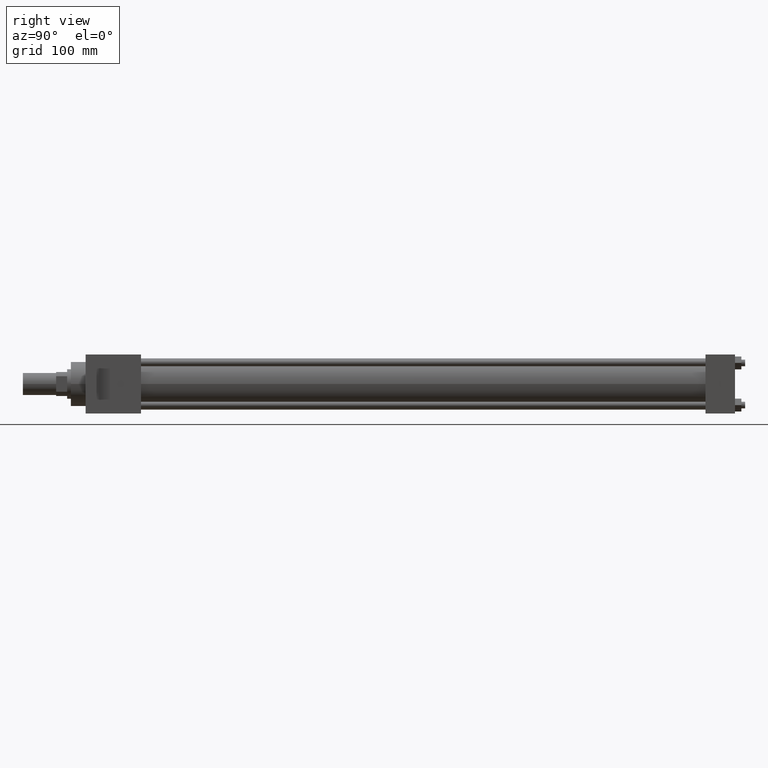
[diagram: clean part render]
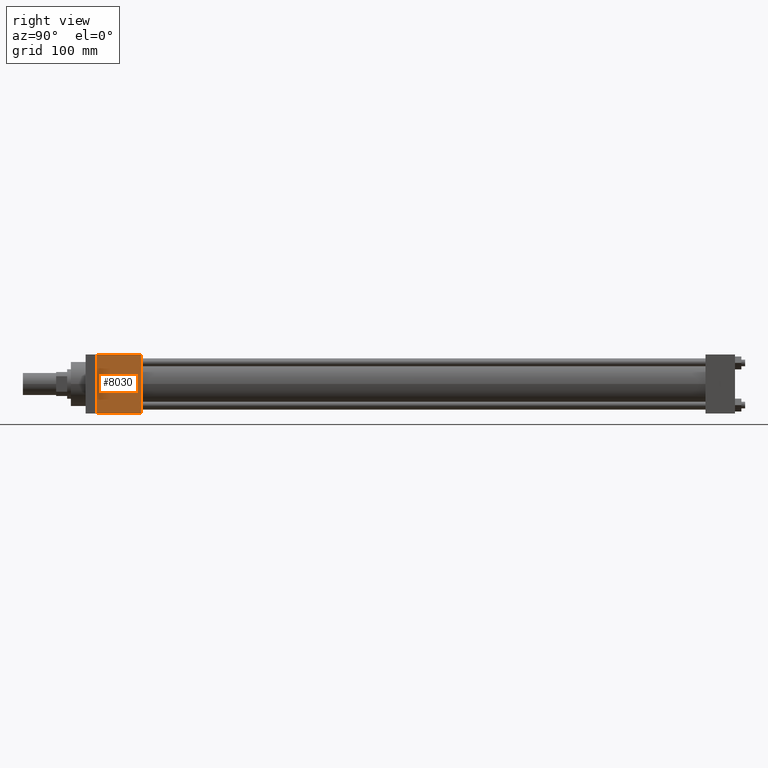
[diagram: same view with one face highlighted and labeled with its STEP entity id]
A machine part, right view. The second image highlights one B-rep face of the part: STEP entity #8030.
In plain terms, the highlighted planar face has unit normal (1, 0, 0).
Its self-contained STEP definition (entity closure, byte-faithful):
#488=VERTEX_POINT('',#490);
#490=CARTESIAN_POINT('',(2.540000000E+001,3.492500000E+001,-2.540000000E+001));
#492=EDGE_CURVE('',#488,#497,#493,.T.);
#493=LINE('',#494,#495);
#494=CARTESIAN_POINT('',(2.540000000E+001,3.492500000E+001,-2.540000000E+001));
#495=VECTOR('',#496,1.0E+000);
#496=DIRECTION('',(0.0E+000,0.0E+000,1.0E+000));
#497=VERTEX_POINT('',#498);
#498=CARTESIAN_POINT('',(2.540000000E+001,3.492500000E+001,2.540000000E+001));
#564=VERTEX_POINT('',#565);
#565=CARTESIAN_POINT('',(2.540000000E+001,7.302500000E+001,-2.540000000E+001));
#566=EDGE_CURVE('',#564,#488,#567,.T.);
#567=LINE('',#568,#569);
#568=CARTESIAN_POINT('',(2.540000000E+001,7.302500000E+001,-2.540000000E+001));
#569=VECTOR('',#570,1.0E+000);
#570=DIRECTION('',(0.0E+000,-1.0E+000,0.0E+000));
#634=EDGE_CURVE('',#639,#497,#635,.T.);
#635=LINE('',#636,#637);
#636=CARTESIAN_POINT('',(2.540000000E+001,7.302500000E+001,2.540000000E+001));
#637=VECTOR('',#638,1.0E+000);
#638=DIRECTION('',(0.0E+000,-1.0E+000,0.0E+000));
#639=VERTEX_POINT('',#640);
#640=CARTESIAN_POINT('',(2.540000000E+001,7.302500000E+001,2.540000000E+001));
#856=EDGE_CURVE('',#564,#639,#857,.T.);
#857=LINE('',#858,#859);
#858=CARTESIAN_POINT('',(2.540000000E+001,7.302500000E+001,-2.540000000E+001));
#859=VECTOR('',#860,1.0E+000);
#860=DIRECTION('',(0.0E+000,0.0E+000,1.0E+000));
#924=FACE_OUTER_BOUND('',#926,.T.);
#925=FACE_BOUND('',#927,.T.);
#926=EDGE_LOOP('',(#928,#929,#930,#931));
#927=EDGE_LOOP('',(#932));
#928=ORIENTED_EDGE('',*,*,#634,.T.);
#929=ORIENTED_EDGE('',*,*,#492,.F.);
#930=ORIENTED_EDGE('',*,*,#566,.F.);
#931=ORIENTED_EDGE('',*,*,#856,.T.);
#932=ORIENTED_EDGE('',*,*,#933,.T.);
#933=EDGE_CURVE('',#939,#939,#934,.T.);
#934=CIRCLE('',#935,2.778125000E+000);
#935=AXIS2_PLACEMENT_3D('',#936,#937,#938);
#936=CARTESIAN_POINT('',(2.540000000E+001,5.556250000E+001,0.000000000E+000));
#937=DIRECTION('',(-1.0E+000,0.0E+000,0.0E+000));
#938=DIRECTION('',(0.0E+000,1.0E+000,0.0E+000));
#939=VERTEX_POINT('',#940);
#940=CARTESIAN_POINT('',(2.540000000E+001,5.834062500E+001,0.000000000E+000));
#941=PLANE('',#942);
#942=AXIS2_PLACEMENT_3D('',#943,#944,#945);
#943=CARTESIAN_POINT('',(2.540000000E+001,7.302500000E+001,-2.540000000E+001));
#944=DIRECTION('',(1.0E+000,0.0E+000,0.0E+000));
#945=DIRECTION('',(0.0E+000,0.0E+000,-1.0E+000));
#8030=ADVANCED_FACE('',(#924,#925),#941,.T.);